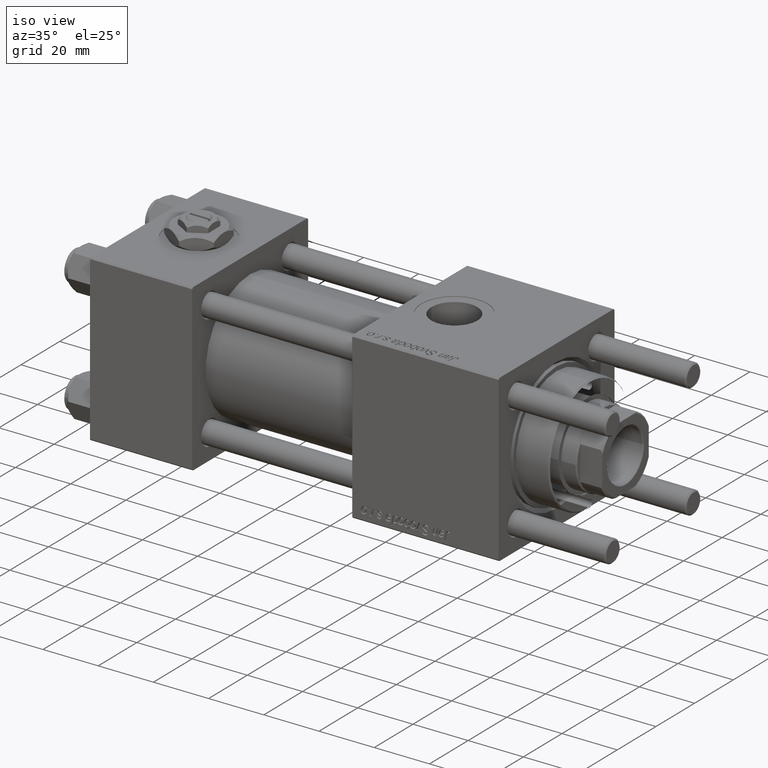
[diagram: clean part render]
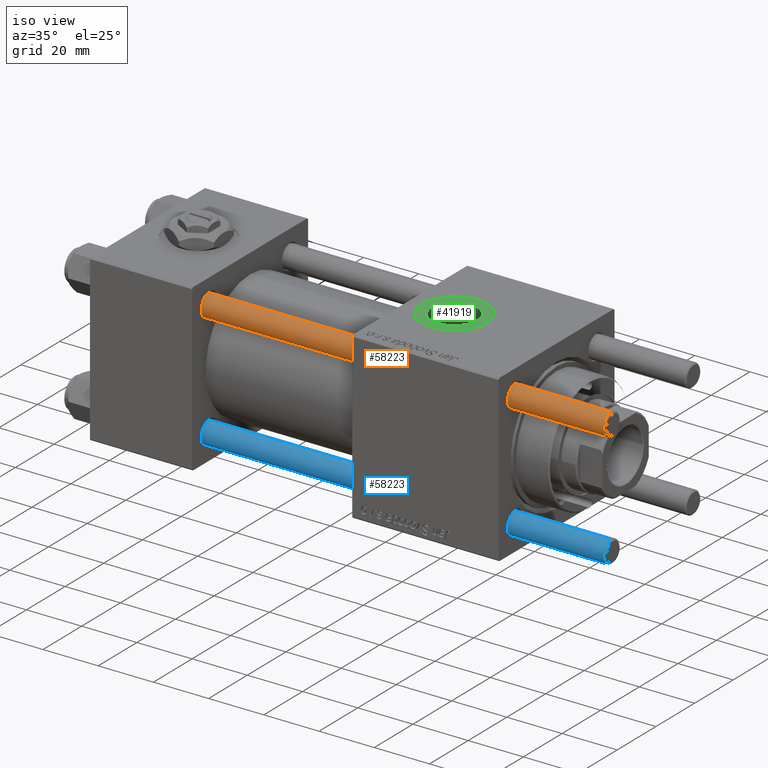
[diagram: same view with three faces highlighted in distinct colors, each labeled with its STEP entity id]
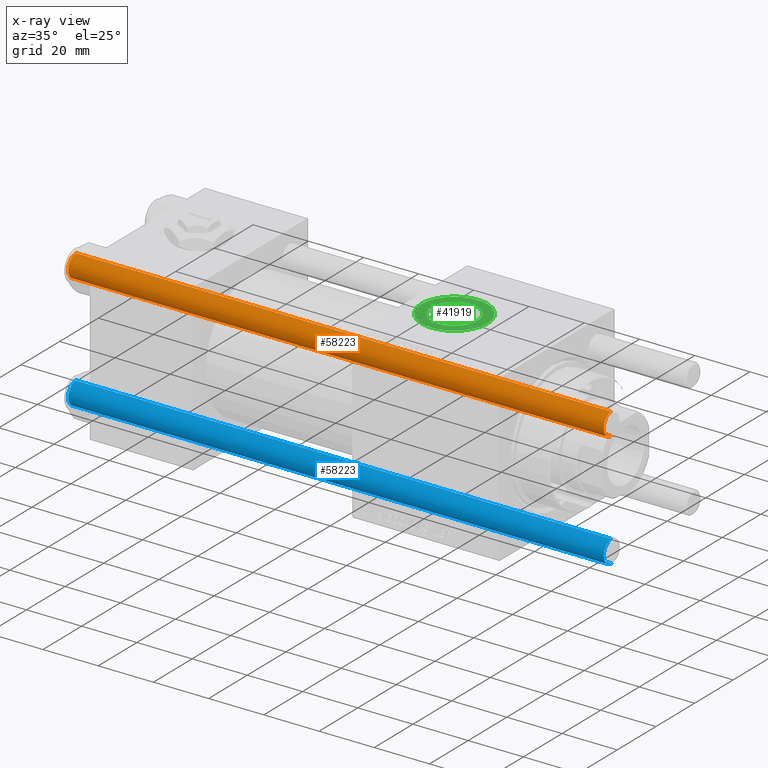
[diagram: x-ray of the same camera — body ghosted, the three highlighted faces saturated]
A machine part, iso view with three faces highlighted in distinct colors.
The next image is the same camera in x-ray (body ghosted, the three faces saturated) — at least one of them is partly hidden behind the body in this view.
Their STEP definitions:

[orange] entity #58223 — the highlighted cylindrical surface (edge-blend (fillet) strip) has radius 4 mm, axis along (-1, 0, -0).
#234 = VECTOR ( 'NONE', #10235, 1000.000000000000000 ) ;
#2971 = ORIENTED_EDGE ( 'NONE', *, *, #56197, .F. ) ;
#3314 = CARTESIAN_POINT ( 'NONE',  ( 4.000000000000000000, 4.898587196589412829E-16, 194.5000000000000568 ) ) ;
#3742 = CARTESIAN_POINT ( 'NONE',  ( -4.000000000000000000, 0.000000000000000000, 195.0000000000000000 ) ) ;
#7634 = EDGE_CURVE ( 'NONE', #55651, #41922, #55237, .T. ) ;
#7900 = AXIS2_PLACEMENT_3D ( 'NONE', #50930, #20192, #56290 ) ;
#8212 = DIRECTION ( 'NONE',  ( 1.000000000000000000, 0.000000000000000000, 0.000000000000000000 ) ) ;
#10235 = DIRECTION ( 'NONE',  ( -0.000000000000000000, -0.000000000000000000, -1.000000000000000000 ) ) ;
#11184 = VERTEX_POINT ( 'NONE', #11936 ) ;
#11936 = CARTESIAN_POINT ( 'NONE',  ( -4.000000000000000000, 0.000000000000000000, 0.5000000000000004441 ) ) ;
#16521 = VERTEX_POINT ( 'NONE', #48164 ) ;
#19005 = FACE_OUTER_BOUND ( 'NONE', #49960, .T. ) ;
#20192 = DIRECTION ( 'NONE',  ( -0.000000000000000000, -0.000000000000000000, -1.000000000000000000 ) ) ;
#20784 = CARTESIAN_POINT ( 'NONE',  ( 0.000000000000000000, 0.000000000000000000, 194.5000000000000568 ) ) ;
#23823 = VECTOR ( 'NONE', #48504, 1000.000000000000000 ) ;
#25427 = DIRECTION ( 'NONE',  ( -0.000000000000000000, -0.000000000000000000, 1.000000000000000000 ) ) ;
#26413 = LINE ( 'NONE', #34507, #23823 ) ;
#30381 = ORIENTED_EDGE ( 'NONE', *, *, #39649, .T. ) ;
#31215 = LINE ( 'NONE', #3742, #234 ) ;
#32735 = CYLINDRICAL_SURFACE ( 'NONE', #7900, 4.000000000000000000 ) ;
#34507 = CARTESIAN_POINT ( 'NONE',  ( 4.000000000000000000, 4.898587196589412829E-16, 195.0000000000000000 ) ) ;
#36230 = AXIS2_PLACEMENT_3D ( 'NONE', #20784, #44060, #8212 ) ;
#39649 = EDGE_CURVE ( 'NONE', #16521, #11184, #42225, .T. ) ;
#41922 = VERTEX_POINT ( 'NONE', #3314 ) ;
#42225 = CIRCLE ( 'NONE', #49831, 4.000000000000000000 ) ;
#43809 = EDGE_CURVE ( 'NONE', #41922, #16521, #26413, .T. ) ;
#44060 = DIRECTION ( 'NONE',  ( 0.000000000000000000, 0.000000000000000000, -1.000000000000000000 ) ) ;
#46539 = ORIENTED_EDGE ( 'NONE', *, *, #43809, .T. ) ;
#48164 = CARTESIAN_POINT ( 'NONE',  ( 4.000000000000000000, 4.898587196589412829E-16, 0.5000000000000004441 ) ) ;
#48504 = DIRECTION ( 'NONE',  ( -0.000000000000000000, -0.000000000000000000, -1.000000000000000000 ) ) ;
#49831 = AXIS2_PLACEMENT_3D ( 'NONE', #57052, #25427, #56770 ) ;
#49960 = EDGE_LOOP ( 'NONE', ( #54366, #46539, #30381, #2971 ) ) ;
#50930 = CARTESIAN_POINT ( 'NONE',  ( 0.000000000000000000, 0.000000000000000000, 195.0000000000000000 ) ) ;
#54366 = ORIENTED_EDGE ( 'NONE', *, *, #7634, .T. ) ;
#55237 = CIRCLE ( 'NONE', #36230, 4.000000000000000000 ) ;
#55651 = VERTEX_POINT ( 'NONE', #57347 ) ;
#56197 = EDGE_CURVE ( 'NONE', #55651, #11184, #31215, .T. ) ;
#56290 = DIRECTION ( 'NONE',  ( -1.000000000000000000, 0.000000000000000000, 0.000000000000000000 ) ) ;
#56770 = DIRECTION ( 'NONE',  ( 1.000000000000000000, 0.000000000000000000, 0.000000000000000000 ) ) ;
#57052 = CARTESIAN_POINT ( 'NONE',  ( 0.000000000000000000, 0.000000000000000000, 0.5000000000000004441 ) ) ;
#57347 = CARTESIAN_POINT ( 'NONE',  ( -4.000000000000000000, 0.000000000000000000, 194.5000000000000568 ) ) ;
#58223 = ADVANCED_FACE ( 'NONE', ( #19005 ), #32735, .T. ) ;

[blue] entity #58223 — the highlighted cylindrical surface (edge-blend (fillet) strip) has radius 4 mm, axis along (1, 0, 0).
#234 = VECTOR ( 'NONE', #10235, 1000.000000000000000 ) ;
#2971 = ORIENTED_EDGE ( 'NONE', *, *, #56197, .F. ) ;
#3314 = CARTESIAN_POINT ( 'NONE',  ( 4.000000000000000000, 4.898587196589412829E-16, 194.5000000000000568 ) ) ;
#3742 = CARTESIAN_POINT ( 'NONE',  ( -4.000000000000000000, 0.000000000000000000, 195.0000000000000000 ) ) ;
#7634 = EDGE_CURVE ( 'NONE', #55651, #41922, #55237, .T. ) ;
#7900 = AXIS2_PLACEMENT_3D ( 'NONE', #50930, #20192, #56290 ) ;
#8212 = DIRECTION ( 'NONE',  ( 1.000000000000000000, 0.000000000000000000, 0.000000000000000000 ) ) ;
#10235 = DIRECTION ( 'NONE',  ( -0.000000000000000000, -0.000000000000000000, -1.000000000000000000 ) ) ;
#11184 = VERTEX_POINT ( 'NONE', #11936 ) ;
#11936 = CARTESIAN_POINT ( 'NONE',  ( -4.000000000000000000, 0.000000000000000000, 0.5000000000000004441 ) ) ;
#16521 = VERTEX_POINT ( 'NONE', #48164 ) ;
#19005 = FACE_OUTER_BOUND ( 'NONE', #49960, .T. ) ;
#20192 = DIRECTION ( 'NONE',  ( -0.000000000000000000, -0.000000000000000000, -1.000000000000000000 ) ) ;
#20784 = CARTESIAN_POINT ( 'NONE',  ( 0.000000000000000000, 0.000000000000000000, 194.5000000000000568 ) ) ;
#23823 = VECTOR ( 'NONE', #48504, 1000.000000000000000 ) ;
#25427 = DIRECTION ( 'NONE',  ( -0.000000000000000000, -0.000000000000000000, 1.000000000000000000 ) ) ;
#26413 = LINE ( 'NONE', #34507, #23823 ) ;
#30381 = ORIENTED_EDGE ( 'NONE', *, *, #39649, .T. ) ;
#31215 = LINE ( 'NONE', #3742, #234 ) ;
#32735 = CYLINDRICAL_SURFACE ( 'NONE', #7900, 4.000000000000000000 ) ;
#34507 = CARTESIAN_POINT ( 'NONE',  ( 4.000000000000000000, 4.898587196589412829E-16, 195.0000000000000000 ) ) ;
#36230 = AXIS2_PLACEMENT_3D ( 'NONE', #20784, #44060, #8212 ) ;
#39649 = EDGE_CURVE ( 'NONE', #16521, #11184, #42225, .T. ) ;
#41922 = VERTEX_POINT ( 'NONE', #3314 ) ;
#42225 = CIRCLE ( 'NONE', #49831, 4.000000000000000000 ) ;
#43809 = EDGE_CURVE ( 'NONE', #41922, #16521, #26413, .T. ) ;
#44060 = DIRECTION ( 'NONE',  ( 0.000000000000000000, 0.000000000000000000, -1.000000000000000000 ) ) ;
#46539 = ORIENTED_EDGE ( 'NONE', *, *, #43809, .T. ) ;
#48164 = CARTESIAN_POINT ( 'NONE',  ( 4.000000000000000000, 4.898587196589412829E-16, 0.5000000000000004441 ) ) ;
#48504 = DIRECTION ( 'NONE',  ( -0.000000000000000000, -0.000000000000000000, -1.000000000000000000 ) ) ;
#49831 = AXIS2_PLACEMENT_3D ( 'NONE', #57052, #25427, #56770 ) ;
#49960 = EDGE_LOOP ( 'NONE', ( #54366, #46539, #30381, #2971 ) ) ;
#50930 = CARTESIAN_POINT ( 'NONE',  ( 0.000000000000000000, 0.000000000000000000, 195.0000000000000000 ) ) ;
#54366 = ORIENTED_EDGE ( 'NONE', *, *, #7634, .T. ) ;
#55237 = CIRCLE ( 'NONE', #36230, 4.000000000000000000 ) ;
#55651 = VERTEX_POINT ( 'NONE', #57347 ) ;
#56197 = EDGE_CURVE ( 'NONE', #55651, #11184, #31215, .T. ) ;
#56290 = DIRECTION ( 'NONE',  ( -1.000000000000000000, 0.000000000000000000, 0.000000000000000000 ) ) ;
#56770 = DIRECTION ( 'NONE',  ( 1.000000000000000000, 0.000000000000000000, 0.000000000000000000 ) ) ;
#57052 = CARTESIAN_POINT ( 'NONE',  ( 0.000000000000000000, 0.000000000000000000, 0.5000000000000004441 ) ) ;
#57347 = CARTESIAN_POINT ( 'NONE',  ( -4.000000000000000000, 0.000000000000000000, 194.5000000000000568 ) ) ;
#58223 = ADVANCED_FACE ( 'NONE', ( #19005 ), #32735, .T. ) ;

[green] entity #41919 — the highlighted planar face has unit normal (0, 0, 1).
#388 = DIRECTION ( 'NONE',  ( 1.000000000000000000, 0.000000000000000000, 0.000000000000000000 ) ) ;
#526 = CARTESIAN_POINT ( 'NONE',  ( 99.00000000000000000, -1.999870792976792017E-15, 29.79999999999999716 ) ) ;
#687 = CARTESIAN_POINT ( 'NONE',  ( 111.0000000000000000, -3.469446951953613794E-15, 29.79999999999999716 ) ) ;
#1169 = ORIENTED_EDGE ( 'NONE', *, *, #6825, .T. ) ;
#1856 = DIRECTION ( 'NONE',  ( 0.000000000000000000, 0.000000000000000000, 1.000000000000000000 ) ) ;
#4595 = DIRECTION ( 'NONE',  ( 1.000000000000000000, 0.000000000000000000, 0.000000000000000000 ) ) ;
#6825 = EDGE_CURVE ( 'NONE', #17294, #43768, #27613, .T. ) ;
#10204 = DIRECTION ( 'NONE',  ( -0.000000000000000000, -0.000000000000000000, -1.000000000000000000 ) ) ;
#12267 = CARTESIAN_POINT ( 'NONE',  ( 111.0000000000000000, -3.469446951953613794E-15, 29.79999999999999716 ) ) ;
#17294 = VERTEX_POINT ( 'NONE', #53501 ) ;
#18683 = FACE_BOUND ( 'NONE', #30049, .T. ) ;
#22535 = CARTESIAN_POINT ( 'NONE',  ( 111.0000000000000000, -3.469446951953613794E-15, 29.79999999999999716 ) ) ;
#22925 = CIRCLE ( 'NONE', #36276, 11.99999999999999645 ) ;
#24602 = VERTEX_POINT ( 'NONE', #526 ) ;
#24668 = CARTESIAN_POINT ( 'NONE',  ( 102.6700000000000017, -3.469446951953613794E-15, 29.79999999999999716 ) ) ;
#25334 = ORIENTED_EDGE ( 'NONE', *, *, #45629, .T. ) ;
#27613 = CIRCLE ( 'NONE', #38154, 8.330000000000003624 ) ;
#29049 = DIRECTION ( 'NONE',  ( 1.000000000000000000, 0.000000000000000000, 0.000000000000000000 ) ) ;
#30049 = EDGE_LOOP ( 'NONE', ( #40019, #1169 ) ) ;
#30928 = AXIS2_PLACEMENT_3D ( 'NONE', #36895, #56560, #53740 ) ;
#32119 = FACE_OUTER_BOUND ( 'NONE', #54234, .T. ) ;
#33597 = AXIS2_PLACEMENT_3D ( 'NONE', #687, #50247, #388 ) ;
#33674 = AXIS2_PLACEMENT_3D ( 'NONE', #12267, #34670, #52850 ) ;
#34630 = CIRCLE ( 'NONE', #33674, 8.330000000000003624 ) ;
#34670 = DIRECTION ( 'NONE',  ( -0.000000000000000000, -0.000000000000000000, -1.000000000000000000 ) ) ;
#36276 = AXIS2_PLACEMENT_3D ( 'NONE', #51407, #1856, #29049 ) ;
#36895 = CARTESIAN_POINT ( 'NONE',  ( 111.0000000000000000, -3.469446951953613794E-15, 29.79999999999999716 ) ) ;
#38154 = AXIS2_PLACEMENT_3D ( 'NONE', #22535, #10204, #4595 ) ;
#38280 = CARTESIAN_POINT ( 'NONE',  ( 123.0000000000000000, -3.469446951953613794E-15, 29.79999999999999716 ) ) ;
#40019 = ORIENTED_EDGE ( 'NONE', *, *, #40159, .T. ) ;
#40159 = EDGE_CURVE ( 'NONE', #43768, #17294, #34630, .T. ) ;
#40825 = ORIENTED_EDGE ( 'NONE', *, *, #50014, .T. ) ;
#41919 = ADVANCED_FACE ( 'NONE', ( #18683, #32119 ), #50307, .T. ) ;
#43768 = VERTEX_POINT ( 'NONE', #24668 ) ;
#45040 = CIRCLE ( 'NONE', #33597, 11.99999999999999645 ) ;
#45629 = EDGE_CURVE ( 'NONE', #24602, #54806, #22925, .T. ) ;
#50014 = EDGE_CURVE ( 'NONE', #54806, #24602, #45040, .T. ) ;
#50247 = DIRECTION ( 'NONE',  ( 0.000000000000000000, 0.000000000000000000, 1.000000000000000000 ) ) ;
#50307 = PLANE ( 'NONE',  #30928 ) ;
#51407 = CARTESIAN_POINT ( 'NONE',  ( 111.0000000000000000, -3.469446951953613794E-15, 29.79999999999999716 ) ) ;
#52850 = DIRECTION ( 'NONE',  ( 1.000000000000000000, 0.000000000000000000, 0.000000000000000000 ) ) ;
#53501 = CARTESIAN_POINT ( 'NONE',  ( 119.3300000000000125, -2.449316168263869821E-15, 29.79999999999999716 ) ) ;
#53740 = DIRECTION ( 'NONE',  ( 1.000000000000000000, 0.000000000000000000, -0.000000000000000000 ) ) ;
#54234 = EDGE_LOOP ( 'NONE', ( #40825, #25334 ) ) ;
#54806 = VERTEX_POINT ( 'NONE', #38280 ) ;
#56560 = DIRECTION ( 'NONE',  ( 0.000000000000000000, 0.000000000000000000, 1.000000000000000000 ) ) ;